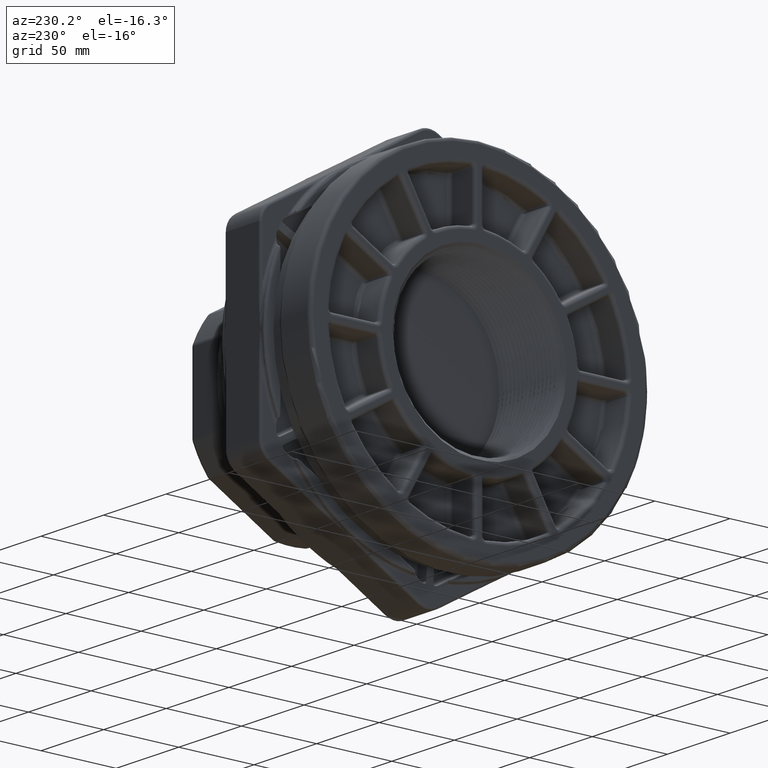
[diagram: clean part render]
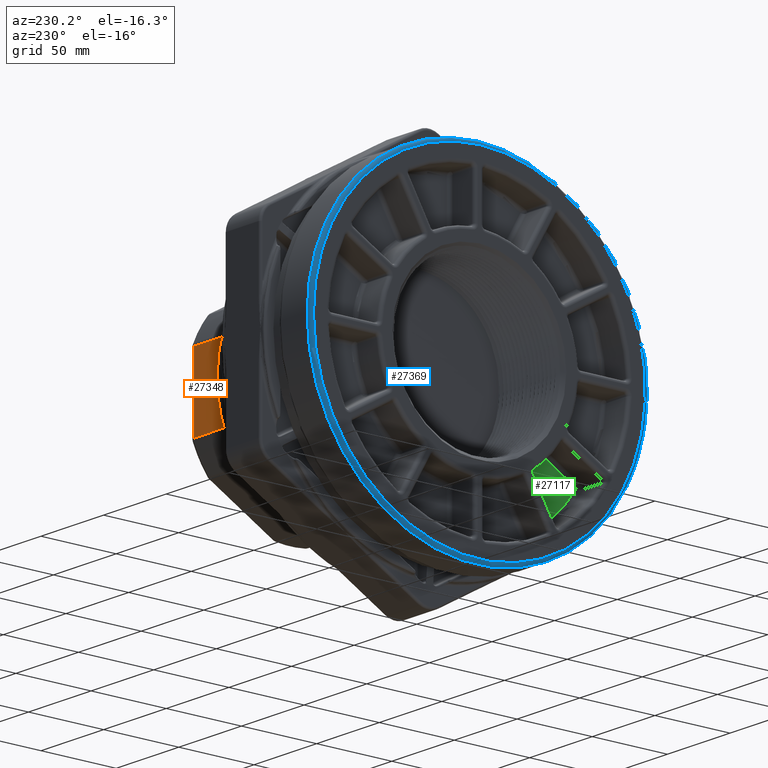
[diagram: same view with three faces highlighted in distinct colors, each labeled with its STEP entity id]
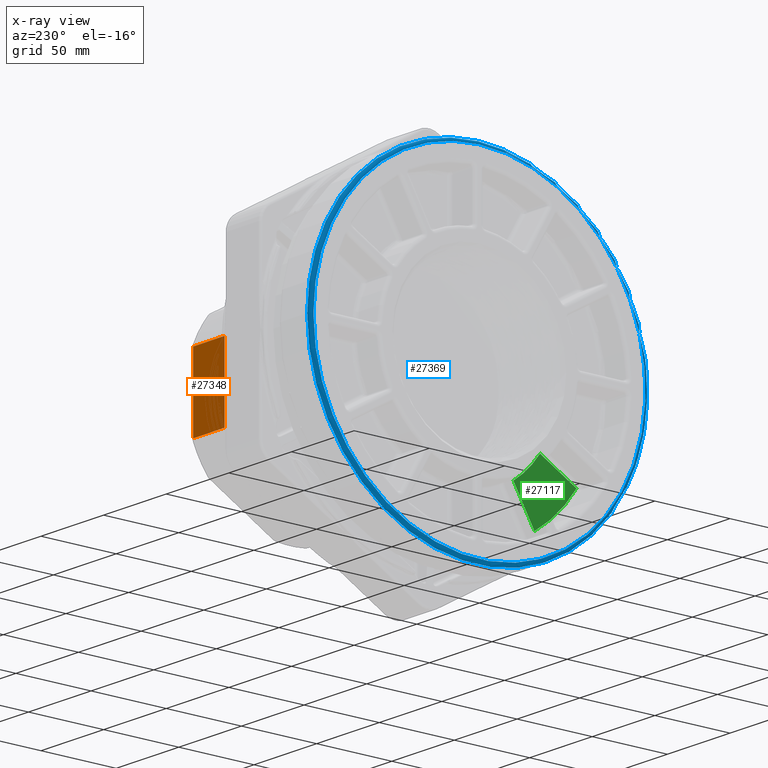
[diagram: x-ray of the same camera — body ghosted, the three highlighted faces saturated]
A machine part, auxiliary view with three faces highlighted in distinct colors.
The next image is the same camera in x-ray (body ghosted, the three faces saturated) — at least one of them is partly hidden behind the body in this view.
Their STEP definitions:

[orange] entity #27348 — the highlighted planar face has unit normal (0, 1, 0).
#987=PLANE('',#29604);
#3533=FACE_OUTER_BOUND('',#5349,.T.);
#5349=EDGE_LOOP('',(#19405,#19406,#19407,#19408));
#8069=LINE('',#50154,#9533);
#8079=LINE('',#50225,#9543);
#8094=LINE('',#50343,#9558);
#8095=LINE('',#50345,#9559);
#9533=VECTOR('',#33814,0.393700787401575);
#9543=VECTOR('',#33872,0.393700787401575);
#9558=VECTOR('',#34033,0.393700787401575);
#9559=VECTOR('',#34036,0.393700787401575);
#11234=VERTEX_POINT('',#50151);
#11235=VERTEX_POINT('',#50153);
#11251=VERTEX_POINT('',#50209);
#11255=VERTEX_POINT('',#50221);
#14192=EDGE_CURVE('',#11235,#11234,#8069,.T.);
#14221=EDGE_CURVE('',#11251,#11255,#8079,.T.);
#14283=EDGE_CURVE('',#11255,#11234,#8094,.T.);
#14284=EDGE_CURVE('',#11235,#11251,#8095,.T.);
#19405=ORIENTED_EDGE('',*,*,#14221,.F.);
#19406=ORIENTED_EDGE('',*,*,#14284,.F.);
#19407=ORIENTED_EDGE('',*,*,#14192,.T.);
#19408=ORIENTED_EDGE('',*,*,#14283,.F.);
#27348=ADVANCED_FACE('',(#3533),#987,.T.);
#29604=AXIS2_PLACEMENT_3D('',#50344,#34034,#34035);
#33814=DIRECTION('',(0.,0.,1.));
#33872=DIRECTION('',(0.,0.,1.));
#34033=DIRECTION('',(-1.,0.,0.));
#34034=DIRECTION('center_axis',(0.,1.,0.));
#34035=DIRECTION('ref_axis',(0.,0.,1.));
#34036=DIRECTION('',(1.,0.,0.));
#50151=CARTESIAN_POINT('',(4.9375,2.5625,0.962175269896295));
#50153=CARTESIAN_POINT('',(4.9375,2.5625,-0.962175269896295));
#50154=CARTESIAN_POINT('',(4.9375,2.5625,-0.739730032399208));
#50209=CARTESIAN_POINT('',(5.91,2.5625,-0.962175269896295));
#50221=CARTESIAN_POINT('',(5.91,2.5625,0.962175269896295));
#50225=CARTESIAN_POINT('',(5.91,2.5625,-0.739730032399208));
#50343=CARTESIAN_POINT('',(3.6875,2.5625,0.962175269896295));
#50344=CARTESIAN_POINT('Origin',(6.,2.5625,-1.47946006479842));
#50345=CARTESIAN_POINT('',(3.6875,2.5625,-0.962175269896295));

[blue] entity #27369 — the highlighted toroidal blend (fillet) surface has major radius 110.427 mm and minor (blend) radius 2.286 mm.
#324=TOROIDAL_SURFACE('',#29644,4.3475,0.09);
#1450=CIRCLE('',#29162,4.3475);
#1451=CIRCLE('',#29163,4.3475);
#1734=CIRCLE('',#29641,4.4375);
#1735=CIRCLE('',#29642,4.4375);
#1736=CIRCLE('',#29643,4.4375);
#1737=CIRCLE('',#29645,0.09);
#3554=FACE_OUTER_BOUND('',#5372,.T.);
#5372=EDGE_LOOP('',(#19521,#19522,#19523,#19524,#19525,#19526,#19527));
#11092=VERTEX_POINT('',#49281);
#11093=VERTEX_POINT('',#49282);
#11301=VERTEX_POINT('',#50405);
#11302=VERTEX_POINT('',#50407);
#11303=VERTEX_POINT('',#50409);
#13905=EDGE_CURVE('',#11092,#11093,#1450,.T.);
#13906=EDGE_CURVE('',#11093,#11092,#1451,.T.);
#14311=EDGE_CURVE('',#11302,#11301,#1734,.T.);
#14312=EDGE_CURVE('',#11303,#11302,#1735,.T.);
#14313=EDGE_CURVE('',#11301,#11303,#1736,.T.);
#14314=EDGE_CURVE('',#11303,#11093,#1737,.T.);
#19521=ORIENTED_EDGE('',*,*,#14311,.T.);
#19522=ORIENTED_EDGE('',*,*,#14313,.T.);
#19523=ORIENTED_EDGE('',*,*,#14314,.T.);
#19524=ORIENTED_EDGE('',*,*,#13906,.T.);
#19525=ORIENTED_EDGE('',*,*,#13905,.T.);
#19526=ORIENTED_EDGE('',*,*,#14314,.F.);
#19527=ORIENTED_EDGE('',*,*,#14312,.T.);
#27369=ADVANCED_FACE('',(#3554),#324,.T.);
#29162=AXIS2_PLACEMENT_3D('',#49283,#33048,#33049);
#29163=AXIS2_PLACEMENT_3D('',#49284,#33050,#33051);
#29641=AXIS2_PLACEMENT_3D('',#50408,#34119,#34120);
#29642=AXIS2_PLACEMENT_3D('',#50410,#34121,#34122);
#29643=AXIS2_PLACEMENT_3D('',#50411,#34123,#34124);
#29644=AXIS2_PLACEMENT_3D('',#50412,#34125,#34126);
#29645=AXIS2_PLACEMENT_3D('',#50413,#34127,#34128);
#33048=DIRECTION('center_axis',(1.,0.,0.));
#33049=DIRECTION('ref_axis',(0.,-1.,1.22464679914735E-16));
#33050=DIRECTION('center_axis',(1.,0.,0.));
#33051=DIRECTION('ref_axis',(0.,-1.,1.22464679914735E-16));
#34119=DIRECTION('center_axis',(-1.,0.,0.));
#34120=DIRECTION('ref_axis',(0.,-1.,1.22464679914735E-16));
#34121=DIRECTION('center_axis',(-1.,0.,0.));
#34122=DIRECTION('ref_axis',(0.,-1.,1.22464679914735E-16));
#34123=DIRECTION('center_axis',(-1.,0.,0.));
#34124=DIRECTION('ref_axis',(0.,-1.,1.22464679914735E-16));
#34125=DIRECTION('center_axis',(1.,0.,0.));
#34126=DIRECTION('ref_axis',(0.,0.,-1.));
#34127=DIRECTION('center_axis',(0.,-1.,-1.22464679914735E-16));
#34128=DIRECTION('ref_axis',(0.,-1.22464679914735E-16,1.));
#49281=CARTESIAN_POINT('',(0.,4.3475,0.));
#49282=CARTESIAN_POINT('',(0.,-5.32415195929312E-16,4.3475));
#49283=CARTESIAN_POINT('Origin',(0.,0.,0.));
#49284=CARTESIAN_POINT('Origin',(0.,0.,0.));
#50405=CARTESIAN_POINT('',(0.09,-4.4375,-5.43437017121638E-16));
#50407=CARTESIAN_POINT('',(0.09,4.4375,-1.08687403424328E-15));
#50408=CARTESIAN_POINT('Origin',(0.09,0.,0.));
#50409=CARTESIAN_POINT('',(0.09,-5.43437017121638E-16,4.4375));
#50410=CARTESIAN_POINT('Origin',(0.09,0.,0.));
#50411=CARTESIAN_POINT('Origin',(0.09,0.,0.));
#50412=CARTESIAN_POINT('Origin',(0.09,0.,0.));
#50413=CARTESIAN_POINT('Origin',(0.09,-5.32415195929312E-16,4.3475));

[green] entity #27117 — the highlighted planar face has unit normal (1, 0, 0).
#962=PLANE('',#29071);
#1393=CIRCLE('',#29057,2.715);
#1395=CIRCLE('',#29061,3.81625);
#3302=FACE_OUTER_BOUND('',#5105,.T.);
#5105=EDGE_LOOP('',(#18387,#18388,#18389,#18390));
#7948=LINE('',#48164,#9412);
#7949=LINE('',#48169,#9413);
#9412=VECTOR('',#32799,0.393700787401575);
#9413=VECTOR('',#32808,0.393700787401575);
#11014=VERTEX_POINT('',#47900);
#11017=VERTEX_POINT('',#47974);
#11020=VERTEX_POINT('',#48053);
#11023=VERTEX_POINT('',#48137);
#13776=EDGE_CURVE('',#11020,#11014,#1393,.T.);
#13781=EDGE_CURVE('',#11023,#11020,#7948,.T.);
#13782=EDGE_CURVE('',#11017,#11023,#1395,.T.);
#13784=EDGE_CURVE('',#11014,#11017,#7949,.T.);
#18387=ORIENTED_EDGE('',*,*,#13776,.F.);
#18388=ORIENTED_EDGE('',*,*,#13781,.F.);
#18389=ORIENTED_EDGE('',*,*,#13782,.F.);
#18390=ORIENTED_EDGE('',*,*,#13784,.F.);
#27117=ADVANCED_FACE('',(#3302),#962,.F.);
#29057=AXIS2_PLACEMENT_3D('',#48080,#32792,#32793);
#29061=AXIS2_PLACEMENT_3D('',#48166,#32802,#32803);
#29071=AXIS2_PLACEMENT_3D('',#48189,#32830,#32831);
#32792=DIRECTION('center_axis',(-1.,0.,0.));
#32793=DIRECTION('ref_axis',(0.,-0.707106781186548,-0.707106781186547));
#32799=DIRECTION('',(0.,0.5,0.866025403784438));
#32802=DIRECTION('center_axis',(1.,0.,0.));
#32803=DIRECTION('ref_axis',(0.,-0.707106781186548,-0.707106781186547));
#32808=DIRECTION('',(0.,-0.866025403784439,-0.5));
#32830=DIRECTION('center_axis',(1.,0.,0.));
#32831=DIRECTION('ref_axis',(0.,0.,-1.));
#47900=CARTESIAN_POINT('',(0.78125,-2.23637499666684,-1.53943232208609));
#47974=CARTESIAN_POINT('',(0.78125,-3.19222033616108,-2.09128988614673));
#48053=CARTESIAN_POINT('',(0.78125,-1.53943232208609,-2.23637499666684));
#48080=CARTESIAN_POINT('Origin',(0.78125,0.,0.));
#48137=CARTESIAN_POINT('',(0.78125,-2.09128988614674,-3.19222033616108));
#48164=CARTESIAN_POINT('',(0.78125,-1.16225783374808,-1.58308961954661));
#48166=CARTESIAN_POINT('Origin',(0.78125,0.,0.));
#48169=CARTESIAN_POINT('',(0.78125,-1.02786888278656,-0.841700991919999));
#48189=CARTESIAN_POINT('Origin',(0.78125,0.,0.));